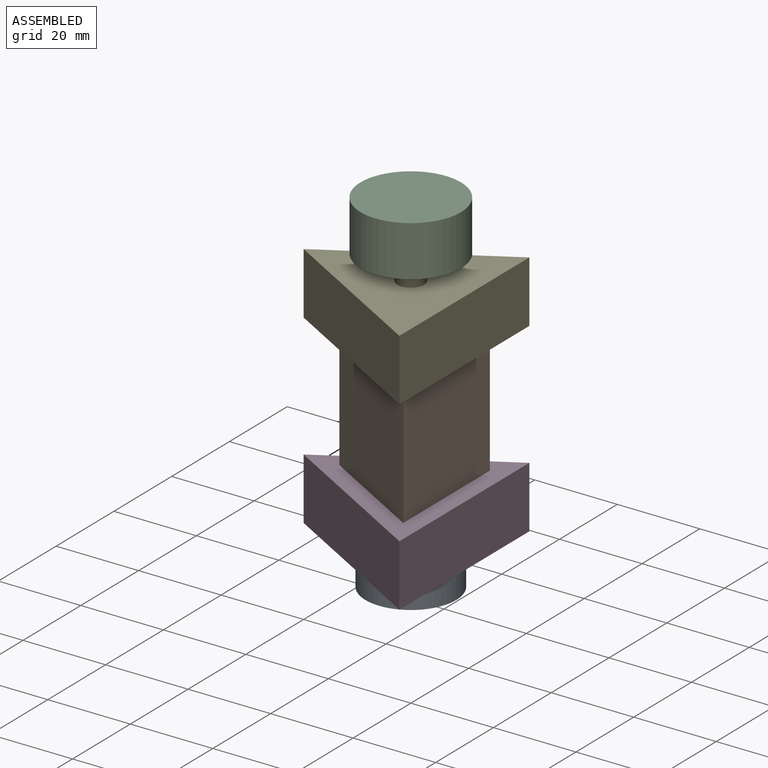
[diagram: assembled view]
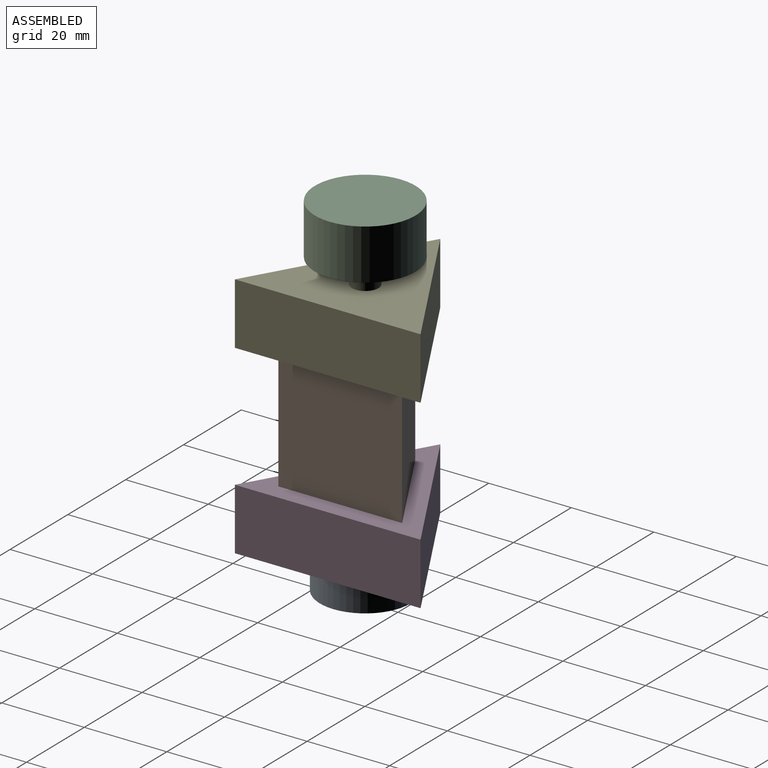
[diagram: assembled view, second angle]
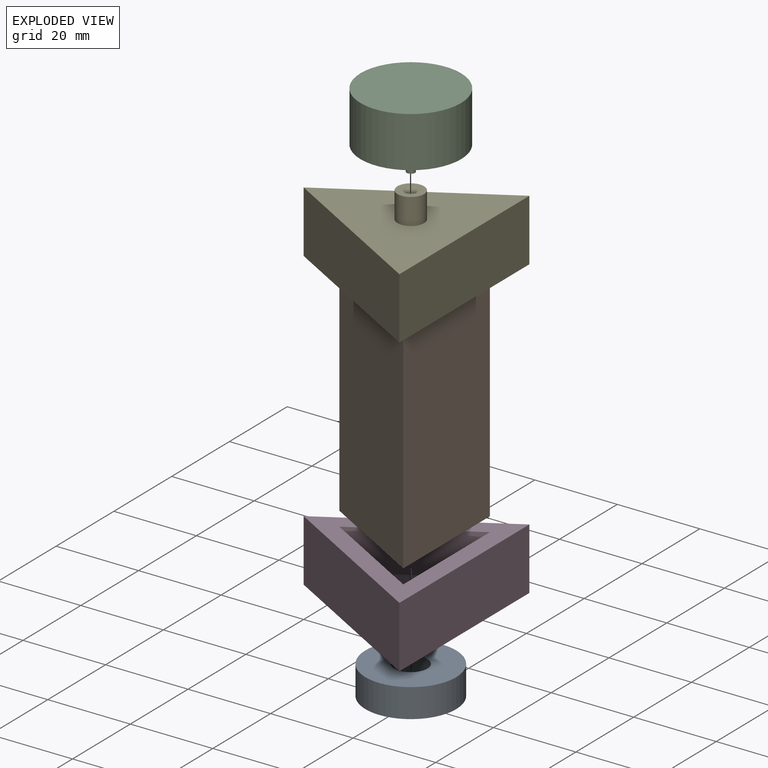
[diagram: exploded view]
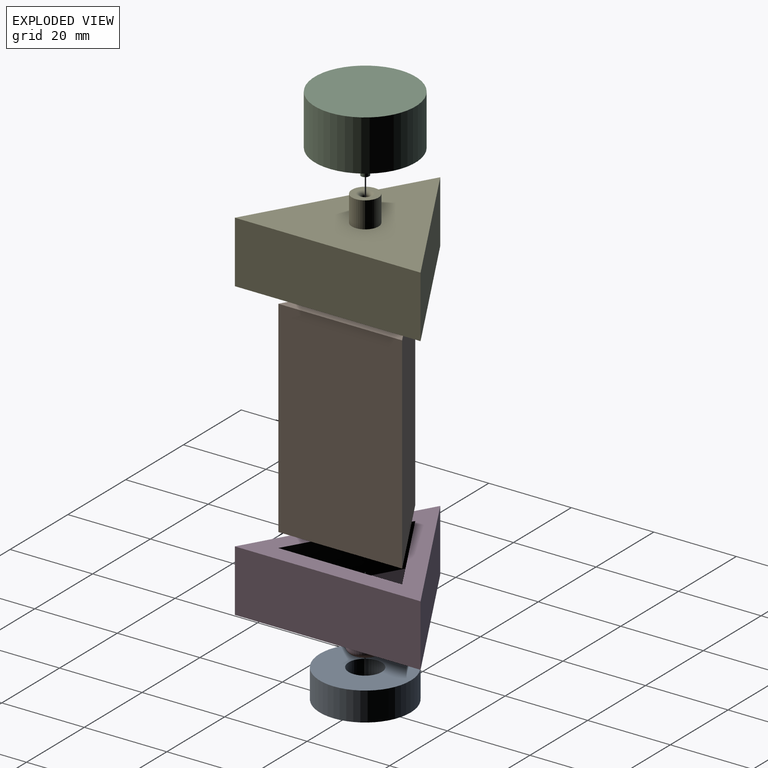
[diagram: exploded view, second angle]
ASSEMBLY  parts=5 mates=4
PART A: 4 faces, bbox 22x22x7 mm
  f0: cylinder r=4mm len=8mm, axis (0,0,-1), area 175.9mm2, adj f2,f3
  f1: cylinder r=11mm len=22mm, axis (0,0,-1), area 483.8mm2, adj f2,f3
  f2: plane 22x22mm, normal (0,0,1), area 329.9mm2, adj f0,f1
  f3: plane 22x22mm, normal (0,0,-1), area 329.9mm2, adj f0,f1
PART B: 5 faces, bbox 26x30x50 mm
  f0: plane 50x30mm, normal (1,0,0), area 1500mm2, adj f1,f2,f3,f4
  f1: plane 50x25.98mm, normal (-0.5,0.87,0), area 1500mm2, adj f0,f2,f3,f4
  f2: plane 50x25.98mm, normal (-0.5,-0.87,0), area 1500mm2, adj f0,f1,f3,f4
  f3: plane 30x25.98mm, normal (0,0,1), area 389.7mm2, adj f0,f1,f2
  f4: plane 30x25.98mm, normal (0,0,-1), area 389.7mm2, adj f0,f1,f2
PART C: 7 faces, bbox 24.4x24.4x18.3 mm
  f0: cylinder r=12.2mm len=24.4mm, axis (0,0,-1), area 942.9mm2, adj f1,f2
  f1: plane 24.4x24.4mm, normal (0,0,1), area 434.9mm2, adj f0,f3
  f2: plane 24.4x24.4mm, normal (0,0,-1), area 467.6mm2, adj f0
  f3: cylinder r=3.23mm len=6.45mm, axis (0,0,-1), area 20.3mm2, adj f1,f4
  f4: plane 6.45x6.45mm, normal (0,0,1), area 29.5mm2, adj f3,f5
  f5: cylinder r=1mm len=5mm, axis (0,0,-1), area 31.4mm2, adj f4,f6
  f6: plane 2x2mm, normal (0,0,1), area 3.1mm2, adj f5
PART D: 13 faces, bbox 39x45x22 mm
  f0: plane 25.98x15mm, normal (0.5,0.87,0), area 300mm2, adj f1,f5,f6,f7
  f1: plane 25.98x15mm, normal (0.5,-0.87,0), area 300mm2, adj f0,f5,f6,f7
  f2: plane 38.97x22.5mm, normal (-0.5,0.87,0), area 675mm2, adj f3,f4,f6,f8
  f3: plane 38.97x22.5mm, normal (-0.5,-0.87,0), area 675mm2, adj f2,f4,f6,f8
  f4: plane 45x15mm, normal (1,0,0), area 675mm2, adj f2,f3,f6,f8
  f5: plane 30x10mm, normal (-1,0,0), area 300mm2, adj f0,f1,f6,f7
  f6: plane 45x38.97mm, normal (0,0,1), area 487.1mm2, adj f0,f1,f2,f3,f4,f5
  f7: plane 30x25.98mm, normal (0,0,1), area 389.7mm2, adj f0,f1,f5
  f8: plane 45x38.97mm, normal (0,0,-1), area 783.6mm2, adj f2,f3,f4,f11
  f9: cylinder r=4mm len=8mm, axis (0,0,1), area 103.1mm2, adj f11,f12
  f10: plane 5.1x5.1mm, normal (0,0,-1), area 20.5mm2, adj f12
  f11: torus R=5.45mm, axis (0,0,1), area 64.7mm2, adj f8,f9
  f12: torus R=2.55mm, axis (0,0,-1), area 49.7mm2, adj f9,f10
PART E: 14 faces, bbox 39x45x21.4 mm
  f0: plane 25.98x15mm, normal (0.5,0.87,0), area 300mm2, adj f1,f5,f6,f7
  f1: plane 25.98x15mm, normal (0.5,-0.87,0), area 300mm2, adj f0,f5,f6,f7
  f2: plane 38.97x22.5mm, normal (-0.5,0.87,0), area 675mm2, adj f3,f4,f6,f8
  f3: plane 38.97x22.5mm, normal (-0.5,-0.87,0), area 675mm2, adj f2,f4,f6,f8
  f4: plane 45x15mm, normal (1,0,0), area 675mm2, adj f2,f3,f6,f8
  f5: plane 30x10mm, normal (-1,0,0), area 300mm2, adj f0,f1,f6,f7
  f6: plane 45x38.97mm, normal (0,0,1), area 487.1mm2, adj f0,f1,f2,f3,f4,f5
  f7: plane 30x25.98mm, normal (0,0,1), area 389.7mm2, adj f0,f1,f5
  f8: plane 45x38.97mm, normal (0,0,-1), area 844.2mm2, adj f2,f3,f4,f10
  f9: cylinder r=1mm len=5.43mm, axis (0,0,1), area 34.1mm2, adj f12,f13
  f10: cylinder r=3.23mm len=6.45mm, axis (0,0,1), area 128.7mm2, adj f8,f11
  f11: plane 6.45x6.45mm, normal (0,0,-1), area 21.1mm2, adj f10,f13
  f12: plane 2x2mm, normal (0,0,-1), area 3.1mm2, adj f9
  f13: torus R=1.92mm, axis (0,0,-1), area 12.1mm2, adj f9,f11
PLACE A t=(-0.05,0.05,-30.76)mm
PLACE B t=(-0.05,0.05,-18.76)mm
PLACE C rot(axis=(0,-1,0),180deg) t=(-0.05,0.05,54.54)mm
PLACE D t=(-0.05,0.05,-18.76)mm
PLACE E rot(axis=(-1,0,0),180deg) t=(-0.05,0.05,31.24)mm
MATE revolute E.f9 <-> C.f0  axis (0,0,1) through (-0.05,0.05,36.24)mm
MATE slider D.f9 <-> B.f4  axis (0,0,1) through (-0.05,0.05,-18.76)mm
MATE slider E.f9 <-> B.f3  axis (0,0,-1) through (-0.05,0.05,31.24)mm
MATE slider A.f0 <-> D.f9  axis (0,0,-1) through (-0.05,0.05,-30.76)mm
